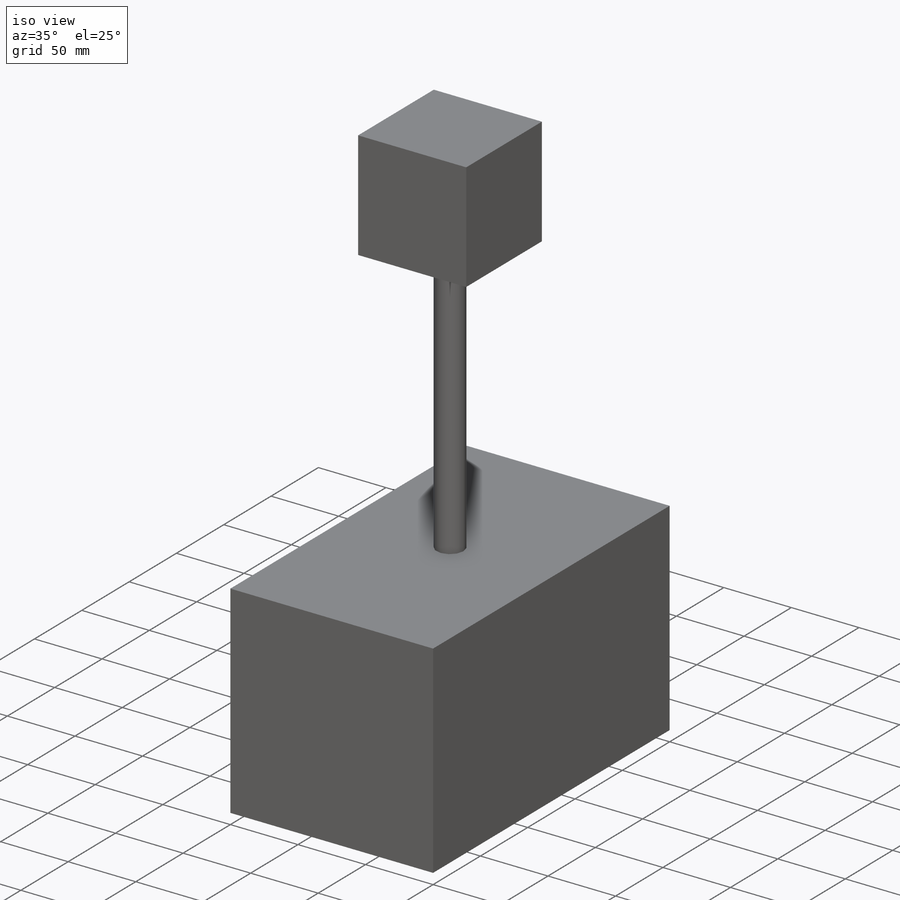
[diagram: iso view]
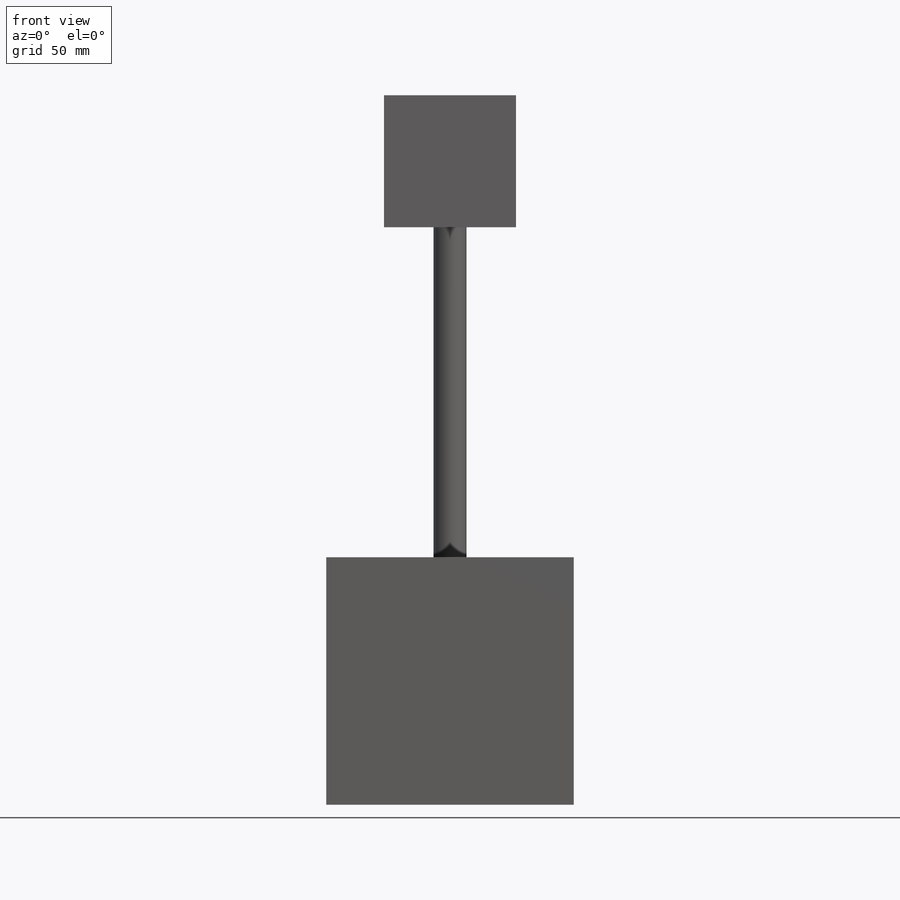
[diagram: front view]
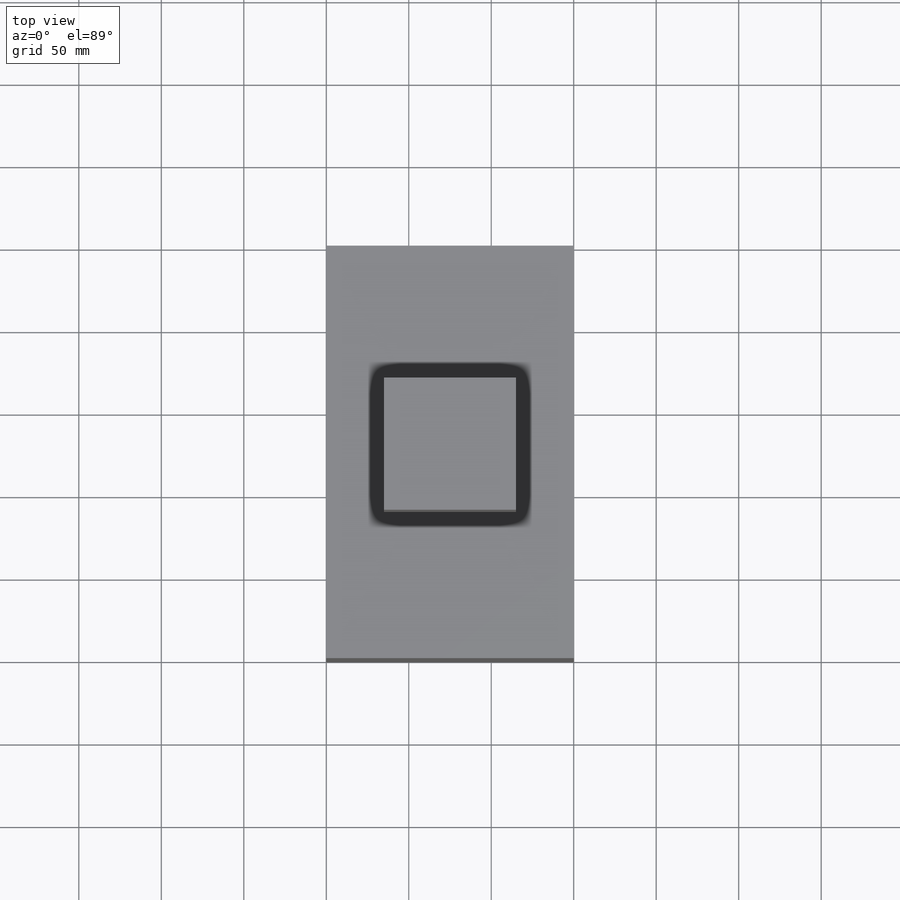
[diagram: top view]
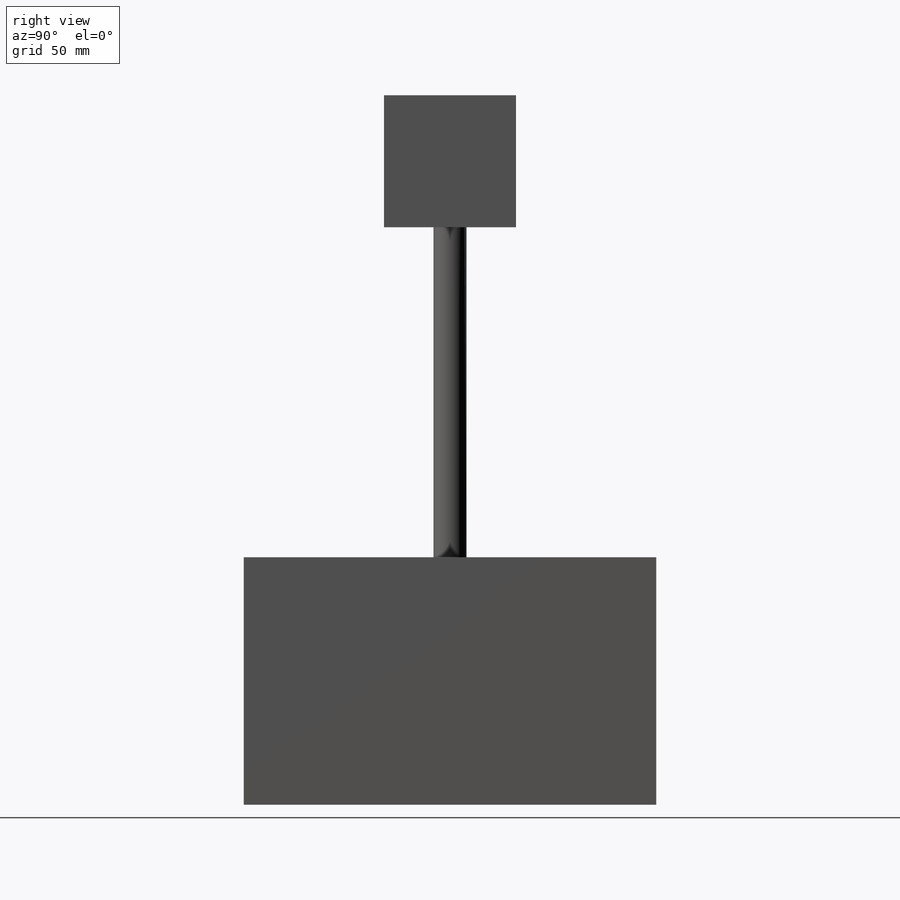
[diagram: right view]
SOLIDWORKS PART (.sldprt)
format: sldprt  version: not decoded by parser v0  size: 115,712 bytes
history: native  units: mm
features: plane x3, sketch x3, extrude x3, material x1 (+9 scaffold rows collapsed)
feature tree (19):
  scaffold x9  (default folders/planes/origin — collapsed)
  material  "Material <not specified>"
  plane  "Face"
  plane  "Dessus"
  plane  "Droite"
  sketch  "Esquisse1"  dims[D1=150.0mm D2=250.0mm]
  extrude  "Extrusion1"  Depth=150mm
  sketch  "Esquisse2"  dims[D1=20.0mm]
  extrude  "Extrusion2"  Depth=200mm
  sketch  "Esquisse3"  dims[D1=80.0mm D2=80.0mm D3=40.0mm D4=40.0mm]
  extrude  "Extrusion3"  Depth=80mm
decode coverage: 6 of 6 modeling features carry decoded parameters
note: suppression state not decoded; provenance and decode notes live in map.json
